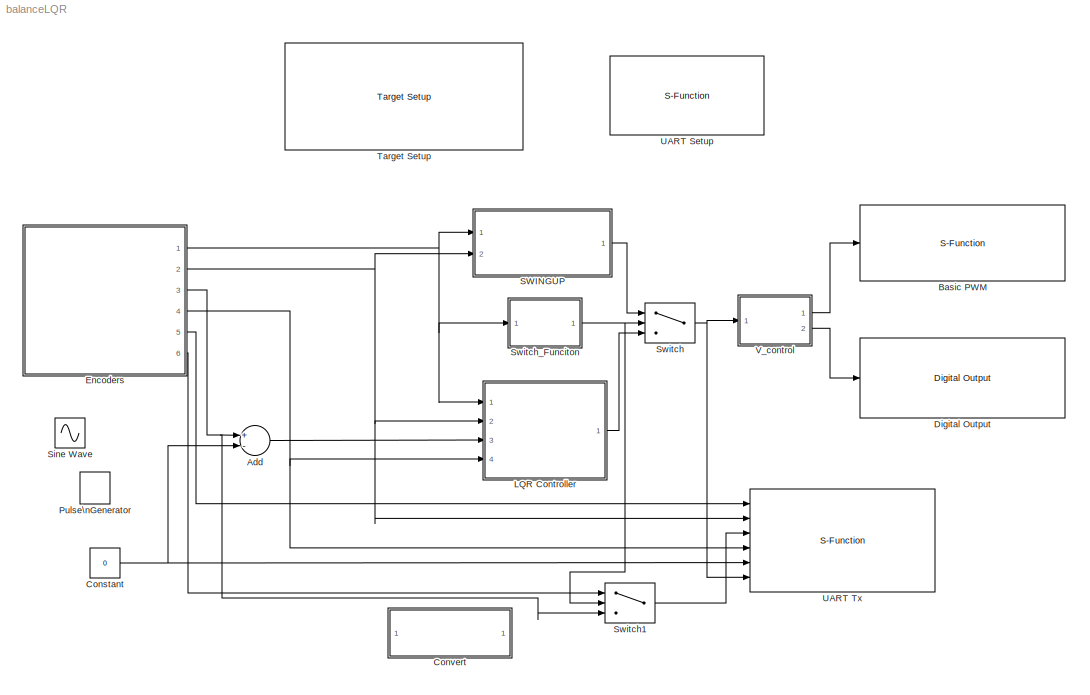
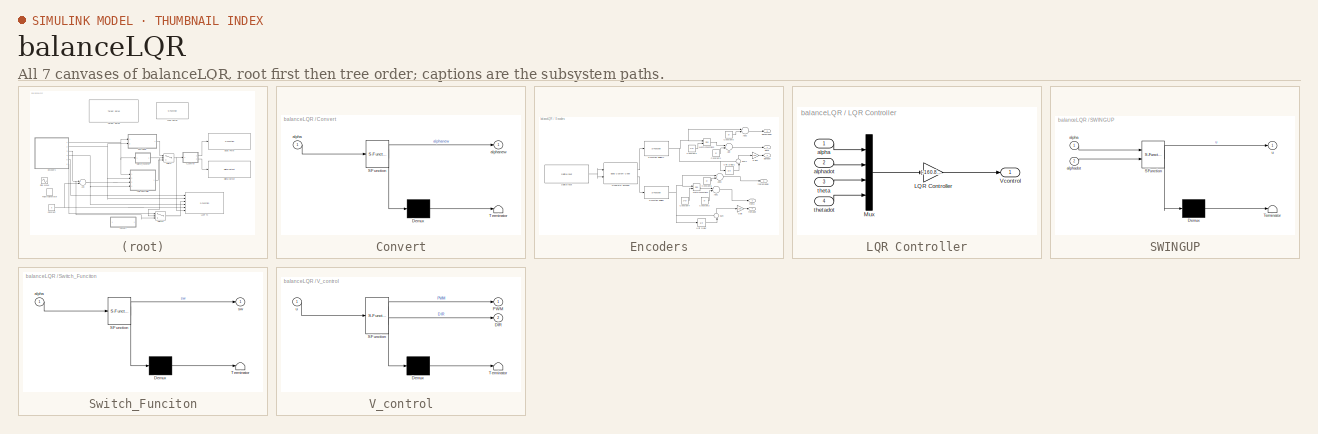
[diagram: thumbnail index - all 7 canvases of the model, root first then tree order]
MODEL balanceLQR
KIND model
CONFIG PreLoadFcn = waijung.modelPreload; % Required for working with Waijung Blockset. Do not remove.
BLOCK [Sum] Add
  InputSameDT = off
  Inputs = +-
  OutDataTypeStr = Inherit: Inherit via internal rule
  Ports = [2, 1]
  SID = 61
  SaturateOnIntegerOverflow = off
BLOCK [S-Function] Basic PWM
  EnableBusSupport = off
  FunctionName = stm32f4_basicpwm
  Parameters = timer,pwmperiod,ch1pin,ch2pin,ch3pin,ch4pin,sampletime,sampletimestr,blockid,apb,portstr,pinstr,pinmat,timarr,timprescale,chmat,polaritystr
  Ports = [1]
  SID = 14
BLOCK [Constant] Constant
  SID = 105
  Value = 0
BLOCK [SubSystem] Convert
  ErrorFcn = Stateflow.Translate.translate
  FunctionWithSeparateData = off
  MaskHideContents = off
  MinAlgLoopOccurrences = off
  Opaque = off
  PermitHierarchicalResolution = ExplicitOnly
  Ports = [1, 1]
  PropExecContextOutsideSubsystem = off
  RTWSystemCode = Auto
  RequestExecContextInheritance = off
  SFBlockType = MATLAB Function
  SID = 84
  TreatAsAtomicUnit = on
BLOCK [Demux] Convert/ Demux 
  Outputs = 1
  Ports = [1, 1]
  SID = 84::19
BLOCK [S-Function] Convert/ SFunction 
  EnableBusSupport = on
  FunctionName = sf_sfun
  PortCounts = [1 2]
  Ports = [1, 2]
  SID = 84::18
  Tag = Stateflow S-Function balanceLQR 4
BLOCK [Terminator] Convert/ Terminator 
  SID = 84::20
BLOCK [Inport] Convert/alpha
  IconDisplay = Port number
  SID = 84::1
BLOCK [Outport] Convert/alphanew
  IconDisplay = Port number
  SID = 84::5
BLOCK [Reference] Digital Output  REF=stm32f4_io_lib/Digital Output
  Ports = [1]
  SID = 15
  SourceBlock = stm32f4_io_lib/Digital Output
  SourceType = stm32f4_digital_output
  bitbandingstr = \n#define DigitalOutput_D12 Peripheral_BB(GPIOD->ODR, 12)  /* Output pin */
  blockid = DigitalOutput
  cinputportlabel = DIR (PD12)
  coutputportlabel = 0
  enablecustomportlabel = on
  pinstr = GPIO_Pin_12
  port = D
  porttype = Push Pull
  porttypestr = PP
  sampletime = -1
  sampletimestr = 0.01
  speed = 100
  use_bitband = on
  use_pin0 = off
  use_pin1 = off
  use_pin10 = off
  use_pin11 = off
  use_pin12 = on
  use_pin13 = off
  use_pin14 = off
  use_pin15 = off
  use_pin2 = off
  use_pin3 = off
  use_pin4 = off
  use_pin5 = off
  use_pin6 = off
  use_pin7 = off
  use_pin8 = off
  use_pin9 = off
  usedpinarray = [0  0  0  0  0  0  0  0  0  0  0  0  1  0  0  0]
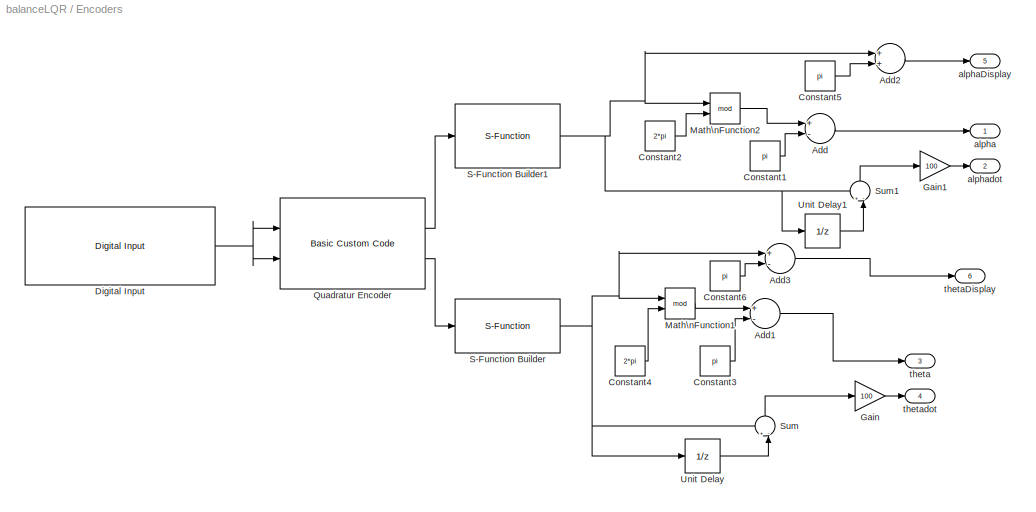
BLOCK [SubSystem] Encoders
  FunctionWithSeparateData = off
  MaskHideContents = off
  MinAlgLoopOccurrences = off
  Opaque = off
  Ports = [0, 6]
  PropExecContextOutsideSubsystem = off
  RTWSystemCode = Auto
  RequestExecContextInheritance = off
  SID = 16
BLOCK [Sum] Encoders/Add
  InputSameDT = off
  Inputs = +-
  OutDataTypeStr = Inherit: Inherit via internal rule
  Ports = [2, 1]
  SID = 50
  SaturateOnIntegerOverflow = off
BLOCK [Sum] Encoders/Add1
  InputSameDT = off
  Inputs = +-
  OutDataTypeStr = Inherit: Inherit via internal rule
  Ports = [2, 1]
  SID = 54
  SaturateOnIntegerOverflow = off
BLOCK [Sum] Encoders/Add2
  InputSameDT = off
  OutDataTypeStr = Inherit: Inherit via internal rule
  Ports = [2, 1]
  SID = 94
  SaturateOnIntegerOverflow = off
BLOCK [Sum] Encoders/Add3
  InputSameDT = off
  Inputs = +-
  OutDataTypeStr = Inherit: Inherit via internal rule
  Ports = [2, 1]
  SID = 97
  SaturateOnIntegerOverflow = off
BLOCK [Constant] Encoders/Constant1
  SID = 51
  Value = pi
BLOCK [Constant] Encoders/Constant2
  SID = 58
  Value = 2*pi
BLOCK [Constant] Encoders/Constant3
  SID = 55
  Value = pi
BLOCK [Constant] Encoders/Constant4
  SID = 56
  Value = 2*pi
BLOCK [Constant] Encoders/Constant5
  SID = 95
  Value = pi
BLOCK [Constant] Encoders/Constant6
  SID = 98
  Value = pi
BLOCK [Reference] Encoders/Digital Input  REF=stm32f4_io_lib/Digital Input
  Ports = [0, 1]
  SID = 46
  SourceBlock = stm32f4_io_lib/Digital Input
  SourceType = stm32f4_digital_input
  bitbandingstr = \n#define EncodersDigitalInput_A0 Peripheral_BB(GPIOA->IDR, 0)  /* Output pin */
  blockid = EncodersDigitalInput
  cinputportlabel = In1, In2
  coutputportlabel = Out1, Out2
  enablecustomportlabel = off
  pinstr = GPIO_Pin_0
  port = A
  porttype = None
  porttypestr = NOPULL
  sampletime = 0.01
  sampletimestr = 0.01
  speed = 100
  use_pin0 = on
  use_pin1 = off
  use_pin10 = off
  use_pin11 = off
  use_pin12 = off
  use_pin13 = off
  use_pin14 = off
  use_pin15 = off
  use_pin2 = off
  use_pin3 = off
  use_pin4 = off
  use_pin5 = off
  use_pin6 = off
  use_pin7 = off
  use_pin8 = off
  use_pin9 = off
  usedpinarray = [1  0  0  0  0  0  0  0  0  0  0  0  0  0  0  0]
BLOCK [Gain] Encoders/Gain
  Gain = 100
  OutDataTypeStr = Inherit: Inherit via internal rule
  ParamDataTypeStr = Inherit: Inherit via internal rule
  SID = 19
  SaturateOnIntegerOverflow = off
BLOCK [Gain] Encoders/Gain1
  Gain = 100
  OutDataTypeStr = Inherit: Inherit via internal rule
  ParamDataTypeStr = Inherit: Inherit via internal rule
  SID = 39
  SaturateOnIntegerOverflow = off
BLOCK [Math] Encoders/Math\nFunction1
  Operator = mod
  Ports = [2, 1]
  SID = 57
BLOCK [Math] Encoders/Math\nFunction2
  Operator = mod
  Ports = [2, 1]
  SID = 59
BLOCK [Reference] Encoders/Quadratur Encoder  REF=waijung_customcode/Basic Custom Code
  Ports = [2, 2]
  SID = 47
  SourceBlock = waijung_customcode/Basic Custom Code
  SourceType = waijung_basic_customcode
  blockid = EncodersQuadraturEncoder
  cinputportlabel = inalpha,intheta
  cinputportlabelstr = [\"inalpha\",\"intheta\"]
  coutputportlabel = alpha, theta
  coutputportlabelstr = [\"alpha\",\" theta\"]
  disablefuncallstr = disable_customio();
  enablecustomportlabel = on
  enablefuncallstr = enable_customio();
  incfiles = {'stm32f4_io_customcode.h'}
  incfilestrarray = [\"stm32f4_io_customcode.h\"]
  incpath = {fullfile(pwd,'customcode')}
  inputportcount = 2
  inputporttype = boolean,boolean
  inputporttypeid = [8  8]
  outputfuncallstr = output_customio(in1,in2,out1,out2);
  outputportcount = 2
  outputporttype = int32,int32
  outputporttypeid = [6  6]
  sampletime = -1
  sampletimestr = 0.01
  srcfiles = {'stm32f4_io_customcode.c'}
  srcpath = {fullfile(pwd,'customcode')}
BLOCK [S-Function] Encoders/S-Function Builder
  CopyFcn = set_param(gcbh,'LinkStatus','none')
  EnableBusSupport = off
  FunctionName = pulsetoangle1
  InitFcn = try, set_param(gcb,'FunctionName','pulsetoangle1'), end
  OpenFcn = sfunctionwizard(gcbh)
  Ports = [1, 1]
  PreSaveFcn = try, set_param(gcb,'FunctionName','pulsetoangle1'), end
  SFunctionModules = pulsetoangle1_wrapper
  SID = 21
  WizardData = DataTag0
BLOCK [S-Function] Encoders/S-Function Builder1
  CopyFcn = set_param(gcbh,'LinkStatus','none')
  EnableBusSupport = off
  FunctionName = pulsetoangle
  InitFcn = try, set_param(gcb,'FunctionName','pulsetoangle'), end
  OpenFcn = sfunctionwizard(gcbh)
  Ports = [1, 1]
  PreSaveFcn = try, set_param(gcb,'FunctionName','pulsetoangle'), end
  SFunctionModules = pulsetoangle_wrapper
  SID = 41
  WizardData = DataTag1
BLOCK [Sum] Encoders/Sum
  IconShape = round
  InputSameDT = off
  Inputs = +-|
  OutDataTypeStr = Inherit: Inherit via internal rule
  Ports = [2, 1]
  SID = 22
  SaturateOnIntegerOverflow = off
BLOCK [Sum] Encoders/Sum1
  IconShape = round
  InputSameDT = off
  Inputs = +-|
  OutDataTypeStr = Inherit: Inherit via internal rule
  Ports = [2, 1]
  SID = 42
  SaturateOnIntegerOverflow = off
BLOCK [UnitDelay] Encoders/Unit Delay
  InputProcessing = Elements as channels (sample based)
  SID = 23
  SampleTime = -1
BLOCK [UnitDelay] Encoders/Unit Delay1
  InputProcessing = Elements as channels (sample based)
  SID = 43
  SampleTime = -1
BLOCK [Outport] Encoders/alpha
  IconDisplay = Port number
  SID = 44
BLOCK [Outport] Encoders/alphaDisplay
  IconDisplay = Port number
  Port = 5
  SID = 93
BLOCK [Outport] Encoders/alphadot
  IconDisplay = Port number
  Port = 2
  SID = 45
BLOCK [Outport] Encoders/theta
  IconDisplay = Port number
  Port = 3
  SID = 24
BLOCK [Outport] Encoders/thetaDisplay
  IconDisplay = Port number
  Port = 6
  SID = 96
BLOCK [Outport] Encoders/thetadot
  IconDisplay = Port number
  Port = 4
  SID = 25
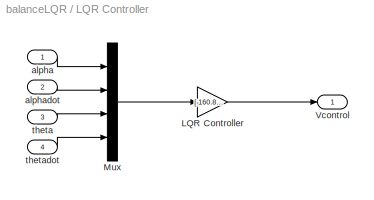
BLOCK [SubSystem] LQR Controller
  FunctionWithSeparateData = off
  MaskHideContents = off
  MinAlgLoopOccurrences = off
  Opaque = off
  Ports = [4, 1]
  PropExecContextOutsideSubsystem = off
  RTWSystemCode = Auto
  RequestExecContextInheritance = off
  SID = 73
BLOCK [Gain] LQR Controller/LQR Controller
  Gain = [-160.8 -20.234  10.324 10.252 ]
  Multiplication = Matrix(K*u)
  OutDataTypeStr = Inherit: Inherit via internal rule
  ParamDataTypeStr = Inherit: Inherit via internal rule
  SID = 76
  SaturateOnIntegerOverflow = off
BLOCK [Mux] LQR Controller/Mux
  DisplayOption = bar
  Ports = [4, 1]
  SID = 77
BLOCK [Outport] LQR Controller/Vcontrol
  IconDisplay = Port number
  SID = 75
BLOCK [Inport] LQR Controller/alpha
  IconDisplay = Port number
  SID = 74
BLOCK [Inport] LQR Controller/alphadot
  IconDisplay = Port number
  Port = 2
  SID = 78
BLOCK [Inport] LQR Controller/theta
  IconDisplay = Port number
  Port = 3
  SID = 79
BLOCK [Inport] LQR Controller/thetadot
  IconDisplay = Port number
  Port = 4
  SID = 80
BLOCK [DiscretePulseGenerator] Pulse\nGenerator
  Amplitude = 3
  Period = 20
  Ports = [0, 1]
  PulseType = Time based
  PulseWidth = 50
  SID = 101
BLOCK [SubSystem] SWINGUP
  ErrorFcn = Stateflow.Translate.translate
  FunctionWithSeparateData = off
  MaskHideContents = off
  MinAlgLoopOccurrences = off
  Opaque = off
  PermitHierarchicalResolution = ExplicitOnly
  Ports = [2, 1]
  PropExecContextOutsideSubsystem = off
  RTWSystemCode = Auto
  RequestExecContextInheritance = off
  SFBlockType = MATLAB Function
  SID = 12
  TreatAsAtomicUnit = on
BLOCK [Demux] SWINGUP/ Demux 
  Outputs = 1
  Ports = [1, 1]
  SID = 12::19
BLOCK [S-Function] SWINGUP/ SFunction 
  EnableBusSupport = on
  FunctionName = sf_sfun
  PortCounts = [2 2]
  Ports = [2, 2]
  SID = 12::18
  Tag = Stateflow S-Function balanceLQR 2
BLOCK [Terminator] SWINGUP/ Terminator 
  SID = 12::20
BLOCK [Inport] SWINGUP/alpha
  IconDisplay = Port number
  SID = 12::21
BLOCK [Inport] SWINGUP/alphadot
  IconDisplay = Port number
  Port = 2
  SID = 12::22
BLOCK [Outport] SWINGUP/u
  IconDisplay = Port number
  SID = 12::23
BLOCK [Sin] Sine Wave
  Amplitude = 1.3
  Frequency = 0.5
  Ports = [0, 1]
  SID = 92
  SampleTime = 0.01
BLOCK [Switch] Switch
  InputSameDT = off
  SID = 29
  SaturateOnIntegerOverflow = off
  Threshold = 1
BLOCK [Switch] Switch1
  InputSameDT = off
  SID = 85
  SaturateOnIntegerOverflow = off
  Threshold = 1
BLOCK [SubSystem] Switch_Funciton
  ErrorFcn = Stateflow.Translate.translate
  FunctionWithSeparateData = off
  MaskHideContents = off
  MinAlgLoopOccurrences = off
  Opaque = off
  PermitHierarchicalResolution = ExplicitOnly
  Ports = [1, 1]
  PropExecContextOutsideSubsystem = off
  RTWSystemCode = Auto
  RequestExecContextInheritance = off
  SFBlockType = MATLAB Function
  SID = 27
  TreatAsAtomicUnit = on
BLOCK [Demux] Switch_Funciton/ Demux 
  Outputs = 1
  Ports = [1, 1]
  SID = 27::19
BLOCK [S-Function] Switch_Funciton/ SFunction 
  EnableBusSupport = on
  FunctionName = sf_sfun
  PortCounts = [1 2]
  Ports = [1, 2]
  SID = 27::18
  Tag = Stateflow S-Function balanceLQR 3
BLOCK [Terminator] Switch_Funciton/ Terminator 
  SID = 27::20
BLOCK [Inport] Switch_Funciton/alpha
  IconDisplay = Port number
  SID = 27::1
BLOCK [Outport] Switch_Funciton/sw
  IconDisplay = Port number
  SID = 27::5
BLOCK [Reference] Target Setup  REF=stm32f4_device_config_lib/Target Setup
  Ports = []
  Priority = 100
  SID = 11
  SourceBlock = stm32f4_device_config_lib/Target Setup
  SourceType = stm32f4_target_setup
  assemblercontrolstr = --cpu Cortex-M4.fp -g --apcs=interwork  --xref $(INCLUDES)
  blockid = TargetSetup
  clockconfig = STM32F4DISCOVERY Default (HSEOSC-8MHz/HCLK-168MHz)
  compiler = MDK-ARM
  compilercontrolstr = -c --cpu Cortex-M4.fp -g -O3 --apcs=interwork --split_sections $(INCLUDES)
  editctrlstr = off
  enableautocompiledownload = off
  execprofile = None
  flashlength = 1M
  flashorigin = 0x8000000
  fullchiperase = off
  hclk = 168000000
  heapsize = 0x2000
  hseval = 8000000
  lastprofileruart = 3
  linkercontrolstr = --cpu Cortex-M4.fp --strict --scatter \"$(MODELNAME).sct\" --summary_stderr --info summarysizes --map --xref --callgraph --symbols --info sizes --info totals --info unused --info veneers  --list \".\\$(MODELNAME).map\" -o $(MODELNAME).axf
  manualsetsampletime = off
  mcu = STM32F407VG (LQFP100); STM32F4DISCOVERY
  mcustr = STM32F407VG
  profilerbaud = 500000
  profilerinitstr = 0.01,168000000,1680000,500000,0
  profilertxpin = D8
  profileruart = 3
  programmerinterface = ST-Link
  ramlength = 112k
  ramorigin = 0x20000000
  runafterdownload = on
  sampletime = 0.01
  showmemoryconfiguration = off
  stacksize = 0x2000
  system_stm32f4xx_c_path = <path>\\stm32f4_default\\hseosc8mhz
  systickreloadvalue = 1680000
BLOCK [S-Function] UART Setup
  EnableBusSupport = off
  FunctionName = stm32f4_usart
  Parameters = configuration,uartmodule,transfer,baudrate,inputtype,outputtype,confstr,binheaderarray,binterminatorarray,asciiheader,asciiterminator,bindatalength,packetmode,varname,sampletime,sampletimestr,blockid
  Ports = []
  Priority = 1
  SID = 35
BLOCK [S-Function] UART Tx
  EnableBusSupport = off
  FunctionName = stm32f4_usart
  Parameters = configuration,uartmodule,transfer,baudrate,inputtype,outputtype,confstr,binheaderarray,binterminatorarray,asciiheader,asciiterminator,bindatalength,packetmode,varname,sampletime,sampletimestr,blockid
  Ports = [6]
  Priority = 1
  SID = 36
BLOCK [SubSystem] V_control
  ErrorFcn = Stateflow.Translate.translate
  FunctionWithSeparateData = off
  MaskHideContents = off
  MinAlgLoopOccurrences = off
  Opaque = off
  PermitHierarchicalResolution = ExplicitOnly
  Ports = [1, 2]
  PropExecContextOutsideSubsystem = off
  RTWSystemCode = Auto
  RequestExecContextInheritance = off
  SFBlockType = MATLAB Function
  SID = 13
  TreatAsAtomicUnit = on
BLOCK [Demux] V_control/ Demux 
  Outputs = 1
  Ports = [1, 1]
  SID = 13::19
BLOCK [S-Function] V_control/ SFunction 
  EnableBusSupport = on
  FunctionName = sf_sfun
  PortCounts = [1 3]
  Ports = [1, 3]
  SID = 13::18
  Tag = Stateflow S-Function balanceLQR 1
BLOCK [Terminator] V_control/ Terminator 
  SID = 13::20
BLOCK [Outport] V_control/DIR
  IconDisplay = Port number
  Port = 2
  SID = 13::21
BLOCK [Outport] V_control/PWM
  IconDisplay = Port number
  SID = 13::5
BLOCK [Inport] V_control/u
  IconDisplay = Port number
  SID = 13::1
LINE Add:1 -> LQR Controller:3
NET Constant:1 -> Add:2, UART Tx:5
LINE Convert/ Demux :1 -> Convert/ Terminator :1
LINE Convert/ SFunction :1 -> Convert/ Demux :1
LINE Convert/ SFunction :2 -> Convert/alphanew:1
LINE Convert/alpha:1 -> Convert/ SFunction :1
LINE Encoders/Add1:1 -> Encoders/theta:1
LINE Encoders/Add2:1 -> Encoders/alphaDisplay:1
LINE Encoders/Add3:1 -> Encoders/thetaDisplay:1
LINE Encoders/Add:1 -> Encoders/alpha:1
LINE Encoders/Constant1:1 -> Encoders/Add:2
LINE Encoders/Constant2:1 -> Encoders/Math\nFunction2:2
LINE Encoders/Constant3:1 -> Encoders/Add1:2
LINE Encoders/Constant4:1 -> Encoders/Math\nFunction1:2
LINE Encoders/Constant5:1 -> Encoders/Add2:2
LINE Encoders/Constant6:1 -> Encoders/Add3:2
NET Encoders/Digital Input:1 -> Encoders/Quadratur Encoder:1, Encoders/Quadratur Encoder:2
LINE Encoders/Gain1:1 -> Encoders/alphadot:1
LINE Encoders/Gain:1 -> Encoders/thetadot:1
LINE Encoders/Math\nFunction1:1 -> Encoders/Add1:1
LINE Encoders/Math\nFunction2:1 -> Encoders/Add:1
LINE Encoders/Quadratur Encoder:1 -> Encoders/S-Function Builder1:1
LINE Encoders/Quadratur Encoder:2 -> Encoders/S-Function Builder:1
NET Encoders/S-Function Builder1:1 -> Encoders/Add2:1, Encoders/Math\nFunction2:1, Encoders/Sum1:1, Encoders/Unit Delay1:1
NET Encoders/S-Function Builder:1 -> Encoders/Add3:1, Encoders/Math\nFunction1:1, Encoders/Sum:1, Encoders/Unit Delay:1
LINE Encoders/Sum1:1 -> Encoders/Gain1:1
LINE Encoders/Sum:1 -> Encoders/Gain:1
LINE Encoders/Unit Delay1:1 -> Encoders/Sum1:2
LINE Encoders/Unit Delay:1 -> Encoders/Sum:2
NET Encoders:1 -> LQR Controller:1, SWINGUP:1, Switch_Funciton:1
NET Encoders:2 -> LQR Controller:2, SWINGUP:2, UART Tx:2
NET Encoders:3 -> Add:1, Switch1:3
NET Encoders:4 -> LQR Controller:4, UART Tx:4
LINE Encoders:5 -> UART Tx:1
LINE Encoders:6 -> Switch1:1
LINE LQR Controller/LQR Controller:1 -> LQR Controller/Vcontrol:1
LINE LQR Controller/Mux:1 -> LQR Controller/LQR Controller:1
LINE LQR Controller/alpha:1 -> LQR Controller/Mux:1
LINE LQR Controller/alphadot:1 -> LQR Controller/Mux:2
LINE LQR Controller/theta:1 -> LQR Controller/Mux:3
LINE LQR Controller/thetadot:1 -> LQR Controller/Mux:4
LINE LQR Controller:1 -> Switch:3
LINE SWINGUP/ Demux :1 -> SWINGUP/ Terminator :1
LINE SWINGUP/ SFunction :1 -> SWINGUP/ Demux :1
LINE SWINGUP/ SFunction :2 -> SWINGUP/u:1
LINE SWINGUP/alpha:1 -> SWINGUP/ SFunction :1
LINE SWINGUP/alphadot:1 -> SWINGUP/ SFunction :2
LINE SWINGUP:1 -> Switch:1
LINE Switch1:1 -> UART Tx:3
NET Switch:1 -> UART Tx:6, V_control:1
LINE Switch_Funciton/ Demux :1 -> Switch_Funciton/ Terminator :1
LINE Switch_Funciton/ SFunction :1 -> Switch_Funciton/ Demux :1
LINE Switch_Funciton/ SFunction :2 -> Switch_Funciton/sw:1
LINE Switch_Funciton/alpha:1 -> Switch_Funciton/ SFunction :1
NET Switch_Funciton:1 -> Switch1:2, Switch:2
LINE V_control/ Demux :1 -> V_control/ Terminator :1
LINE V_control/ SFunction :1 -> V_control/ Demux :1
LINE V_control/ SFunction :2 -> V_control/PWM:1
LINE V_control/ SFunction :3 -> V_control/DIR:1
LINE V_control/u:1 -> V_control/ SFunction :1
LINE V_control:1 -> Basic PWM:1
LINE V_control:2 -> Digital Output:1
note: NET lines group one-source signal fan-out (src -> all destinations, sorted); 1:1 wires keep LINE
CHART V_control states=1 transitions=1
  STATE_LABEL 'eML_blk_kernel()'
CHART SWINGUP states=1 transitions=1
  STATE_LABEL 'eML_blk_kernel()'
CHART Switch_Funciton states=1 transitions=1
  STATE_LABEL 'eML_blk_kernel()'
CHART Convert states=1 transitions=1
  STATE_LABEL 'eML_blk_kernel()'
note: 1 file-system path scrubbed to <path> (not preserved elsewhere — flat text is the only slx artifact)
